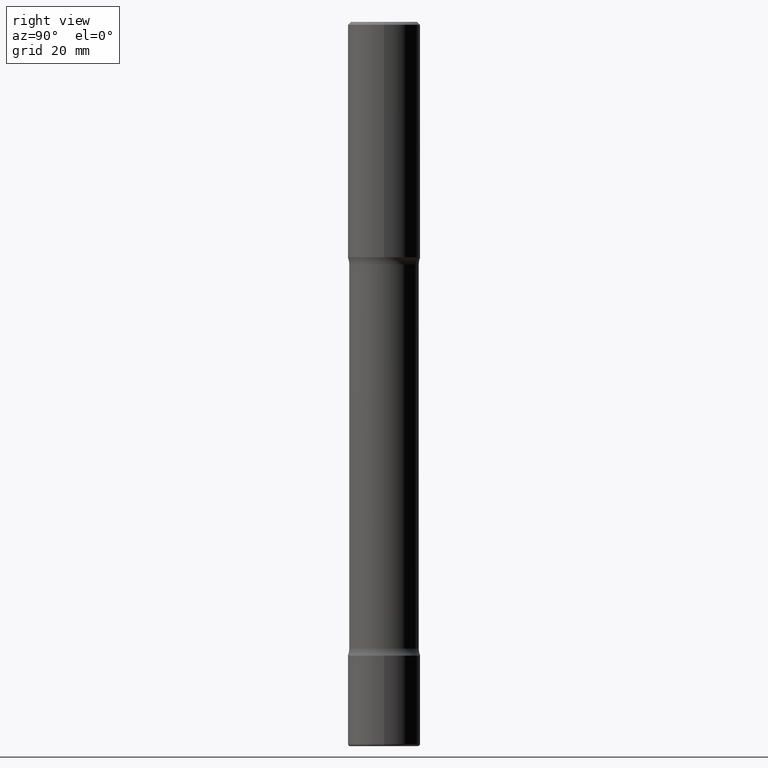
[diagram: clean part render]
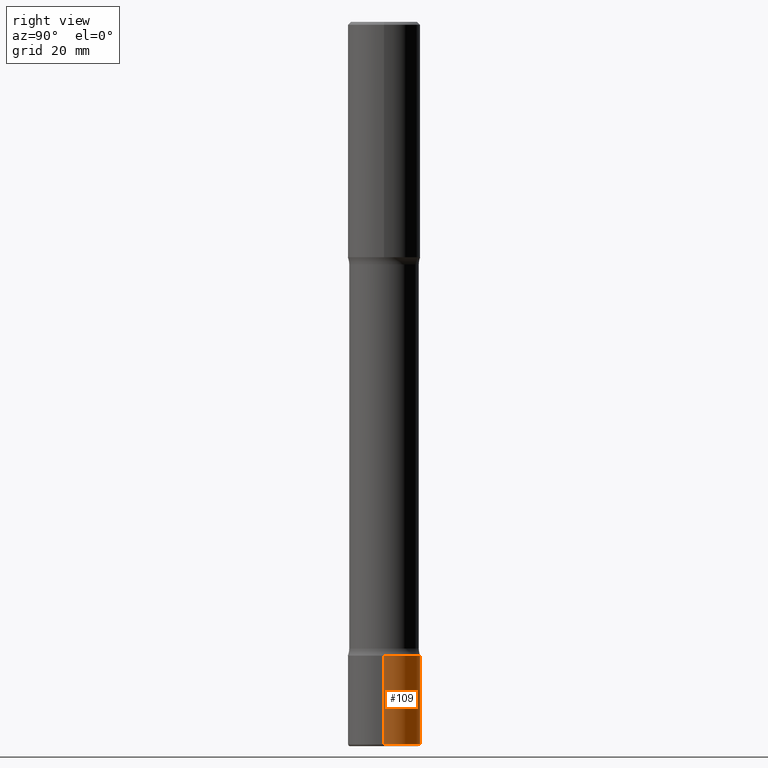
[diagram: same view with one face highlighted and labeled with its STEP entity id]
A machine part, right view. The second image highlights one B-rep face of the part: STEP entity #109.
In plain terms, the highlighted cylindrical surface (edge-blend (fillet) strip) has radius 6.35 mm, axis along (-0, 0, 1).
Its self-contained STEP definition (entity closure, byte-faithful):
#5 = LINE ( 'NONE', #212, #506 ) ;
#45 = CIRCLE ( 'NONE', #352, 0.2500000000000002220 ) ;
#58 = VERTEX_POINT ( 'NONE', #529 ) ;
#61 = DIRECTION ( 'NONE',  ( -2.445468806185136597E-29, 3.491481338843145583E-15, 1.000000000000000000 ) ) ;
#72 = DIRECTION ( 'NONE',  ( 1.000000000000000000, -6.982962677686265922E-15, 0.000000000000000000 ) ) ;
#75 = DIRECTION ( 'NONE',  ( -2.445468806185136597E-29, 3.491481338843145583E-15, 1.000000000000000000 ) ) ;
#86 = CARTESIAN_POINT ( 'NONE',  ( 1.069892602705997261E-28, -1.527523085743876365E-14, -4.375000000000000000 ) ) ;
#90 = VERTEX_POINT ( 'NONE', #538 ) ;
#104 = FACE_OUTER_BOUND ( 'NONE', #160, .T. ) ;
#108 = AXIS2_PLACEMENT_3D ( 'NONE', #152, #75, #72 ) ;
#109 = ADVANCED_FACE ( 'NONE', ( #104 ), #183, .T. ) ;
#134 = ORIENTED_EDGE ( 'NONE', *, *, #326, .F. ) ;
#135 = ORIENTED_EDGE ( 'NONE', *, *, #198, .T. ) ;
#140 = ORIENTED_EDGE ( 'NONE', *, *, #508, .F. ) ;
#147 = CARTESIAN_POINT ( 'NONE',  ( -0.2500000000000003886, -1.562867763473282642E-14, -4.984999999999999432 ) ) ;
#152 = CARTESIAN_POINT ( 'NONE',  ( 1.219066199883290567E-28, -1.740503447413308005E-14, -4.984999999999999432 ) ) ;
#160 = EDGE_LOOP ( 'NONE', ( #308, #135, #134, #140 ) ) ;
#183 = CYLINDRICAL_SURFACE ( 'NONE', #232, 0.2500000000000002220 ) ;
#198 = EDGE_CURVE ( 'NONE', #550, #90, #5, .T. ) ;
#212 = CARTESIAN_POINT ( 'NONE',  ( -0.2500000000000002220, 1.776356839400252042E-15, -1.229733772563727566E-29 ) ) ;
#219 = CIRCLE ( 'NONE', #108, 0.2500000000000001665 ) ;
#229 = DIRECTION ( 'NONE',  ( 1.000000000000000000, -6.982962677686266711E-15, 4.876176775795935232E-29 ) ) ;
#232 = AXIS2_PLACEMENT_3D ( 'NONE', #271, #61, #229 ) ;
#248 = DIRECTION ( 'NONE',  ( -2.445468806185136877E-29, 3.491481338843145188E-15, 1.000000000000000000 ) ) ;
#271 = CARTESIAN_POINT ( 'NONE',  ( 0.000000000000000000, 0.000000000000000000, 0.000000000000000000 ) ) ;
#280 = CARTESIAN_POINT ( 'NONE',  ( 0.2500000000000002220, -1.745740669421568255E-15, 1.219044193948984929E-29 ) ) ;
#294 = VECTOR ( 'NONE', #248, 39.37007874015748143 ) ;
#308 = ORIENTED_EDGE ( 'NONE', *, *, #370, .T. ) ;
#326 = EDGE_CURVE ( 'NONE', #58, #90, #45, .T. ) ;
#352 = AXIS2_PLACEMENT_3D ( 'NONE', #86, #434, #485 ) ;
#370 = EDGE_CURVE ( 'NONE', #402, #550, #219, .T. ) ;
#389 = DIRECTION ( 'NONE',  ( -2.445468806185136877E-29, 3.491481338843145188E-15, 1.000000000000000000 ) ) ;
#402 = VERTEX_POINT ( 'NONE', #520 ) ;
#415 = LINE ( 'NONE', #280, #294 ) ;
#434 = DIRECTION ( 'NONE',  ( -2.445468806185136597E-29, 3.491481338843145583E-15, 1.000000000000000000 ) ) ;
#485 = DIRECTION ( 'NONE',  ( 1.000000000000000000, -6.982962677686264344E-15, 0.000000000000000000 ) ) ;
#506 = VECTOR ( 'NONE', #389, 39.37007874015748143 ) ;
#508 = EDGE_CURVE ( 'NONE', #402, #58, #415, .T. ) ;
#520 = CARTESIAN_POINT ( 'NONE',  ( 0.2500000000000003886, -1.915077514355464672E-14, -4.984999999999999432 ) ) ;
#529 = CARTESIAN_POINT ( 'NONE',  ( 0.2500000000000002220, -1.702097152686033033E-14, -4.375000000000000000 ) ) ;
#538 = CARTESIAN_POINT ( 'NONE',  ( -0.2500000000000002220, -1.456377582638566980E-14, -4.375000000000000000 ) ) ;
#550 = VERTEX_POINT ( 'NONE', #147 ) ;